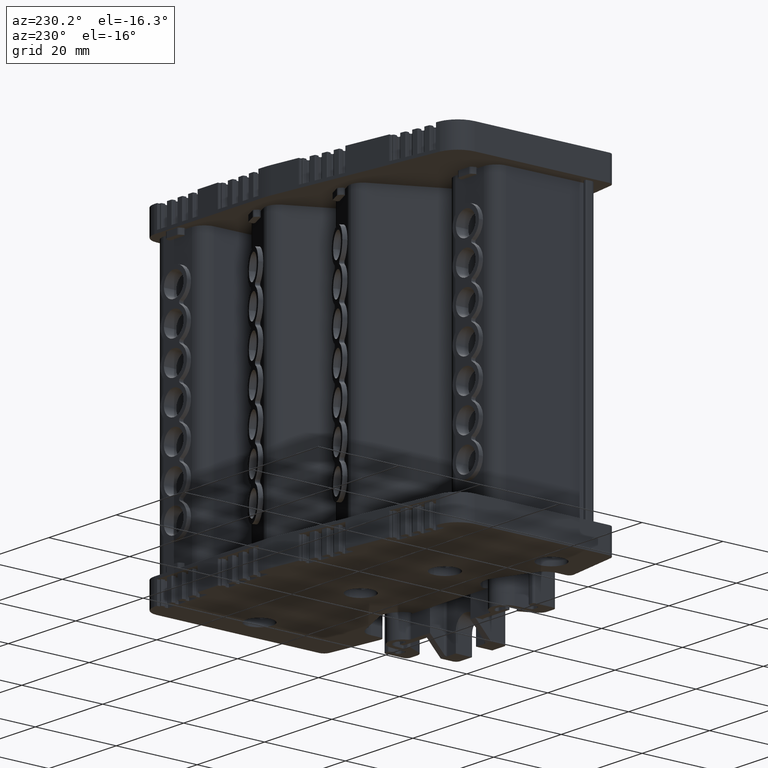
[diagram: clean part render]
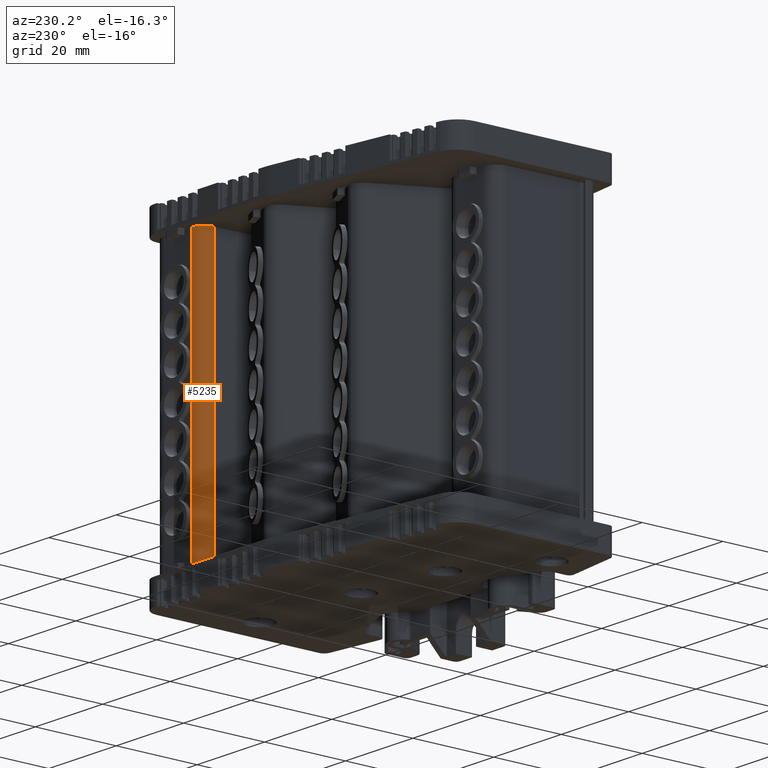
[diagram: same view with one face highlighted and labeled with its STEP entity id]
A machine part, auxiliary view. The second image highlights one B-rep face of the part: STEP entity #5235.
In plain terms, the highlighted cylindrical surface (edge-blend (fillet) strip) has radius 2.9989 mm, axis along (-0, 0, -1).
Its self-contained STEP definition (entity closure, byte-faithful):
#5235 = ADVANCED_FACE ( 'NONE', ( #77787 ), #77808, .T. ) ;
#12755 = EDGE_LOOP ( 'NONE', ( #22716, #22522, #22521, #22533 ) ) ;
#16669 = EDGE_CURVE ( 'NONE', #78344, #78317, #22028, .T. ) ;
#17387 = EDGE_CURVE ( 'NONE', #91049, #78344, #34926, .T. ) ;
#17426 = EDGE_CURVE ( 'NONE', #91169, #78317, #39354, .T. ) ;
#18849 = EDGE_CURVE ( 'NONE', #91049, #91169, #48015, .T. ) ;
#22028 = CIRCLE ( 'NONE', #22044, 2.998863636114013100 ) ;
#22044 = AXIS2_PLACEMENT_3D ( 'NONE', #31446, #31421, #31451 ) ;
#22521 = ORIENTED_EDGE ( 'NONE', *, *, #17387, .T. ) ;
#22522 = ORIENTED_EDGE ( 'NONE', *, *, #18849, .F. ) ;
#22533 = ORIENTED_EDGE ( 'NONE', *, *, #16669, .T. ) ;
#22716 = ORIENTED_EDGE ( 'NONE', *, *, #17426, .F. ) ;
#31421 = DIRECTION ( 'NONE',  ( -6.982962677686110500E-015, 1.604252062634190000E-014, -1.000000000000000000 ) ) ;
#31446 = CARTESIAN_POINT ( 'NONE',  ( 423.3986242384743800, -74.55599632540993600, 96.12882012113385600 ) ) ;
#31451 = DIRECTION ( 'NONE',  ( 0.0000000000000000000, 1.000000000000000000, 1.388304653871914900E-014 ) ) ;
#34888 = CARTESIAN_POINT ( 'NONE',  ( 420.4002173438171900, -74.50365893837425800, 40.78957769736381100 ) ) ;
#34912 = DIRECTION ( 'NONE',  ( 6.982962677686110500E-015, -1.604252062634190000E-014, 1.000000000000000000 ) ) ;
#34926 = LINE ( 'NONE', #34888, #37240 ) ;
#37222 = VECTOR ( 'NONE', #39473, 1000.000000000000000 ) ;
#37240 = VECTOR ( 'NONE', #34912, 1000.000000000000000 ) ;
#39354 = LINE ( 'NONE', #39537, #37222 ) ;
#39473 = DIRECTION ( 'NONE',  ( -3.229646657839732600E-028, -1.604252062634179600E-014, 1.000000000000000000 ) ) ;
#39537 = CARTESIAN_POINT ( 'NONE',  ( 423.3986242384739900, -71.55713268929298500, 28.89408527322356700 ) ) ;
#48015 = CIRCLE ( 'NONE', #48042, 2.998863636114013100 ) ;
#48042 = AXIS2_PLACEMENT_3D ( 'NONE', #49728, #49725, #49697 ) ;
#49697 = DIRECTION ( 'NONE',  ( 0.0000000000000000000, 1.000000000000000000, 1.619688762850567300E-014 ) ) ;
#49725 = DIRECTION ( 'NONE',  ( -6.982962677686110500E-015, 1.604252062634190000E-014, -1.000000000000000000 ) ) ;
#49728 = CARTESIAN_POINT ( 'NONE',  ( 423.3986242384739300, -74.55599632540885600, 28.59460800001204800 ) ) ;
#69328 = CARTESIAN_POINT ( 'NONE',  ( 423.3986242384742100, -71.55713268929406500, 96.12882012113391300 ) ) ;
#69385 = CARTESIAN_POINT ( 'NONE',  ( 420.4002173438175300, -74.50365893837349100, 96.12882012113388400 ) ) ;
#73833 = CARTESIAN_POINT ( 'NONE',  ( 420.4002173438170800, -74.50365893837239600, 28.59460800001208000 ) ) ;
#73977 = CARTESIAN_POINT ( 'NONE',  ( 423.3986242384739900, -71.55713268929298500, 28.59460800001209400 ) ) ;
#75893 = AXIS2_PLACEMENT_3D ( 'NONE', #77809, #77816, #77829 ) ;
#77787 = FACE_OUTER_BOUND ( 'NONE', #12755, .T. ) ;
#77808 = CYLINDRICAL_SURFACE ( 'NONE', #75893, 2.998863636114013100 ) ;
#77809 = CARTESIAN_POINT ( 'NONE',  ( 423.3986242384740400, -74.55599632540904100, 40.78957769736378900 ) ) ;
#77816 = DIRECTION ( 'NONE',  ( -6.982962677686110500E-015, 1.604252062634190000E-014, -1.000000000000000000 ) ) ;
#77829 = DIRECTION ( 'NONE',  ( 0.0000000000000000000, 1.000000000000000000, 1.619688762850567300E-014 ) ) ;
#78317 = VERTEX_POINT ( 'NONE', #69328 ) ;
#78344 = VERTEX_POINT ( 'NONE', #69385 ) ;
#91049 = VERTEX_POINT ( 'NONE', #73833 ) ;
#91169 = VERTEX_POINT ( 'NONE', #73977 ) ;